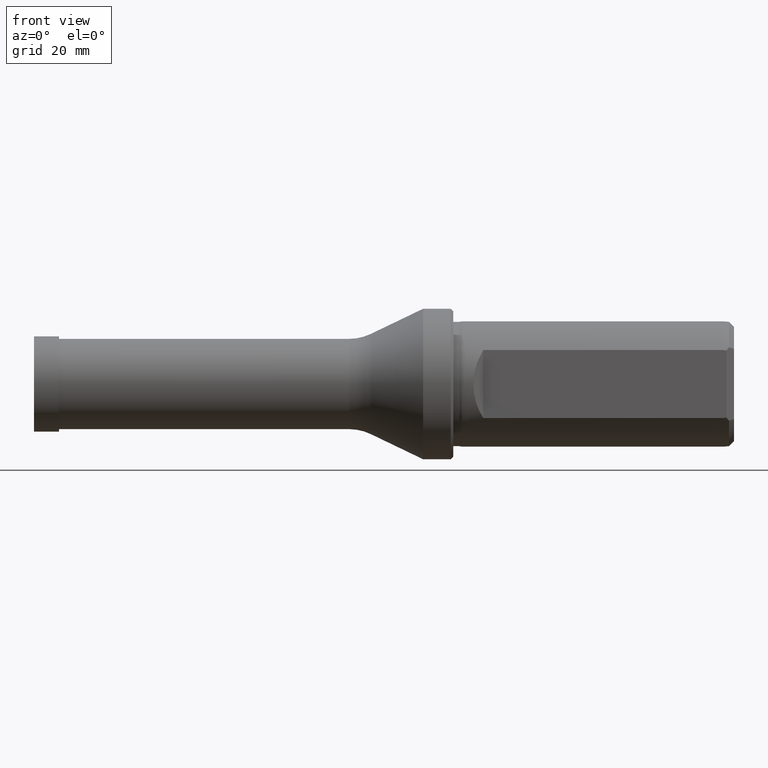
[diagram: clean part render]
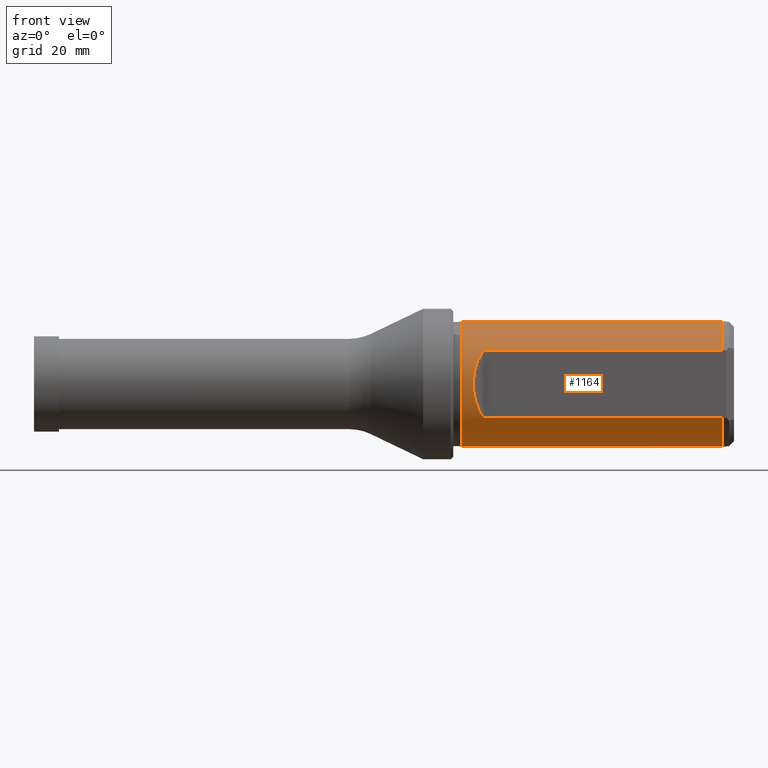
[diagram: same view with one face highlighted and labeled with its STEP entity id]
A machine part, front view. The second image highlights one B-rep face of the part: STEP entity #1164.
In plain terms, the highlighted cylindrical surface (partial cylindrical patch) has radius 12.5 mm, axis along (-1, -0, -0).
Its self-contained STEP definition (entity closure, byte-faithful):
#10 = EDGE_CURVE ( 'NONE', #803, #982, #1132, .T. ) ;
#14 = CARTESIAN_POINT ( 'NONE',  ( 84.82953698905210200, 0.0000000000000000000, -12.50000000000000000 ) ) ;
#46 = VECTOR ( 'NONE', #488, 1000.000000000000000 ) ;
#49 = AXIS2_PLACEMENT_3D ( 'NONE', #1043, #304, #944 ) ;
#77 = CARTESIAN_POINT ( 'NONE',  ( 136.8499999999819500, -10.49999999999999800, -6.782329983127953100 ) ) ;
#117 = CARTESIAN_POINT ( 'NONE',  ( 86.35373134328358400, -13.24626865671642600, 2.530720142957198200 ) ) ;
#123 = ORIENTED_EDGE ( 'NONE', *, *, #125, .T. ) ;
#125 = EDGE_CURVE ( 'NONE', #613, #973, #499, .T. ) ;
#138 = ORIENTED_EDGE ( 'NONE', *, *, #871, .T. ) ;
#145 = EDGE_CURVE ( 'NONE', #551, #599, #391, .T. ) ;
#151 = ORIENTED_EDGE ( 'NONE', *, *, #10, .T. ) ;
#159 = CARTESIAN_POINT ( 'NONE',  ( -0.5000000000000005600, 1.530808498934191500E-015, -12.50000000000000000 ) ) ;
#165 = ORIENTED_EDGE ( 'NONE', *, *, #516, .F. ) ;
#180 = ORIENTED_EDGE ( 'NONE', *, *, #145, .F. ) ;
#183 = ORIENTED_EDGE ( 'NONE', *, *, #938, .F. ) ;
#185 = AXIS2_PLACEMENT_3D ( 'NONE', #435, #660, #460 ) ;
#188 = DIRECTION ( 'NONE',  ( -1.000000000000000000, -0.0000000000000000000, -0.0000000000000000000 ) ) ;
#195 = ORIENTED_EDGE ( 'NONE', *, *, #512, .T. ) ;
#209 = ORIENTED_EDGE ( 'NONE', *, *, #431, .F. ) ;
#304 = DIRECTION ( 'NONE',  ( 1.000000000000000000, -0.0000000000000000000, -0.0000000000000000000 ) ) ;
#317 = AXIS2_PLACEMENT_3D ( 'NONE', #632, #329, #996 ) ;
#329 = DIRECTION ( 'NONE',  ( -1.000000000000000000, -0.0000000000000000000, -0.0000000000000000000 ) ) ;
#352 = CYLINDRICAL_SURFACE ( 'NONE', #1030, 12.50000000000000000 ) ;
#354 = CIRCLE ( 'NONE', #317, 12.50000000000000000 ) ;
#361 = CARTESIAN_POINT ( 'NONE',  ( 84.82953698905210200, 1.530808498934191500E-015, 12.50000000000000000 ) ) ;
#374 = LINE ( 'NONE', #782, #375 ) ;
#375 = VECTOR ( 'NONE', #571, 1000.000000000000000 ) ;
#391 =( BOUNDED_CURVE ( )  B_SPLINE_CURVE ( 3, ( #1149, #117, #656, #1026 ),
 .UNSPECIFIED., .F., .T. ) 
 B_SPLINE_CURVE_WITH_KNOTS ( ( 4, 4 ),
 ( 5.709672202756487500, 6.856698411602685900 ),
 .UNSPECIFIED. ) 
 CURVE ( )  GEOMETRIC_REPRESENTATION_ITEM ( )  RATIONAL_B_SPLINE_CURVE ( ( 1.000000000000000000, 0.8933333333333323100, 0.8933333333333323100, 1.000000000000000000 ) ) 
 REPRESENTATION_ITEM ( '' )  );
#430 = FACE_OUTER_BOUND ( 'NONE', #915, .T. ) ;
#431 = EDGE_CURVE ( 'NONE', #893, #973, #1118, .T. ) ;
#435 = CARTESIAN_POINT ( 'NONE',  ( 136.8500000000001600, 0.0000000000000000000, 0.0000000000000000000 ) ) ;
#440 = CARTESIAN_POINT ( 'NONE',  ( -0.5000000000000021100, -10.49999999999998000, 6.782329983125301900 ) ) ;
#460 = DIRECTION ( 'NONE',  ( 0.0000000000000000000, 0.0000000000000000000, 1.000000000000000000 ) ) ;
#483 = CARTESIAN_POINT ( 'NONE',  ( -0.5000000000000005600, 0.0000000000000000000, 0.0000000000000000000 ) ) ;
#488 = DIRECTION ( 'NONE',  ( -1.000000000000000000, -0.0000000000000000000, -0.0000000000000000000 ) ) ;
#499 = CIRCLE ( 'NONE', #49, 12.50000000000000000 ) ;
#512 = EDGE_CURVE ( 'NONE', #893, #835, #354, .T. ) ;
#516 = EDGE_CURVE ( 'NONE', #803, #551, #1148, .T. ) ;
#551 = VERTEX_POINT ( 'NONE', #1090 ) ;
#571 = DIRECTION ( 'NONE',  ( -1.000000000000000000, -0.0000000000000000000, -0.0000000000000000000 ) ) ;
#599 = VERTEX_POINT ( 'NONE', #683 ) ;
#613 = VERTEX_POINT ( 'NONE', #361 ) ;
#632 = CARTESIAN_POINT ( 'NONE',  ( 136.8500000000001600, 0.0000000000000000000, 0.0000000000000000000 ) ) ;
#656 = CARTESIAN_POINT ( 'NONE',  ( 86.35373134328358400, -13.24626865671642400, -2.530720142957207000 ) ) ;
#659 = DIRECTION ( 'NONE',  ( -1.000000000000000000, -0.0000000000000000000, -0.0000000000000000000 ) ) ;
#660 = DIRECTION ( 'NONE',  ( -1.000000000000000000, -0.0000000000000000000, -0.0000000000000000000 ) ) ;
#683 = CARTESIAN_POINT ( 'NONE',  ( 89.09999999999999400, -10.49999999999999100, -6.782329983125303700 ) ) ;
#703 = CARTESIAN_POINT ( 'NONE',  ( 136.8500000000001600, 0.0000000000000000000, 12.50000000000000000 ) ) ;
#737 = DIRECTION ( 'NONE',  ( 0.0000000000000000000, 0.0000000000000000000, 1.000000000000000000 ) ) ;
#782 = CARTESIAN_POINT ( 'NONE',  ( -0.5000000000000005600, 0.0000000000000000000, 12.50000000000000000 ) ) ;
#803 = VERTEX_POINT ( 'NONE', #851 ) ;
#835 = VERTEX_POINT ( 'NONE', #77 ) ;
#851 = CARTESIAN_POINT ( 'NONE',  ( 136.8500000000001600, -10.49999999999999800, 6.782329983125270800 ) ) ;
#871 = EDGE_CURVE ( 'NONE', #982, #613, #374, .T. ) ;
#893 = VERTEX_POINT ( 'NONE', #1162 ) ;
#914 = VECTOR ( 'NONE', #188, 1000.000000000000000 ) ;
#915 = EDGE_LOOP ( 'NONE', ( #209, #195, #183, #180, #165, #151, #138, #123 ) ) ;
#938 = EDGE_CURVE ( 'NONE', #599, #835, #1174, .T. ) ;
#944 = DIRECTION ( 'NONE',  ( 0.0000000000000000000, 0.0000000000000000000, -1.000000000000000000 ) ) ;
#973 = VERTEX_POINT ( 'NONE', #14 ) ;
#979 = DIRECTION ( 'NONE',  ( 1.000000000000000000, 0.0000000000000000000, 0.0000000000000000000 ) ) ;
#982 = VERTEX_POINT ( 'NONE', #703 ) ;
#996 = DIRECTION ( 'NONE',  ( 0.0000000000000000000, 0.0000000000000000000, 1.000000000000000000 ) ) ;
#1026 = CARTESIAN_POINT ( 'NONE',  ( 89.09999999999999400, -10.49999999999999100, -6.782329983125303700 ) ) ;
#1030 = AXIS2_PLACEMENT_3D ( 'NONE', #483, #659, #737 ) ;
#1043 = CARTESIAN_POINT ( 'NONE',  ( 84.82953698905210200, 0.0000000000000000000, 0.0000000000000000000 ) ) ;
#1090 = CARTESIAN_POINT ( 'NONE',  ( 89.09999999999999400, -10.49999999999999100, 6.782329983125293000 ) ) ;
#1118 = LINE ( 'NONE', #159, #46 ) ;
#1132 = CIRCLE ( 'NONE', #185, 12.50000000000000000 ) ;
#1143 = VECTOR ( 'NONE', #979, 1000.000000000000000 ) ;
#1148 = LINE ( 'NONE', #440, #914 ) ;
#1149 = CARTESIAN_POINT ( 'NONE',  ( 89.09999999999999400, -10.49999999999999100, 6.782329983125293000 ) ) ;
#1162 = CARTESIAN_POINT ( 'NONE',  ( 136.8500000000001600, 1.530808498934191500E-015, -12.50000000000000000 ) ) ;
#1164 = ADVANCED_FACE ( 'NONE', ( #430 ), #352, .T. ) ;
#1174 = LINE ( 'NONE', #1231, #1143 ) ;
#1231 = CARTESIAN_POINT ( 'NONE',  ( -0.5000000000000021100, -10.49999999999998000, -6.782329983125301900 ) ) ;